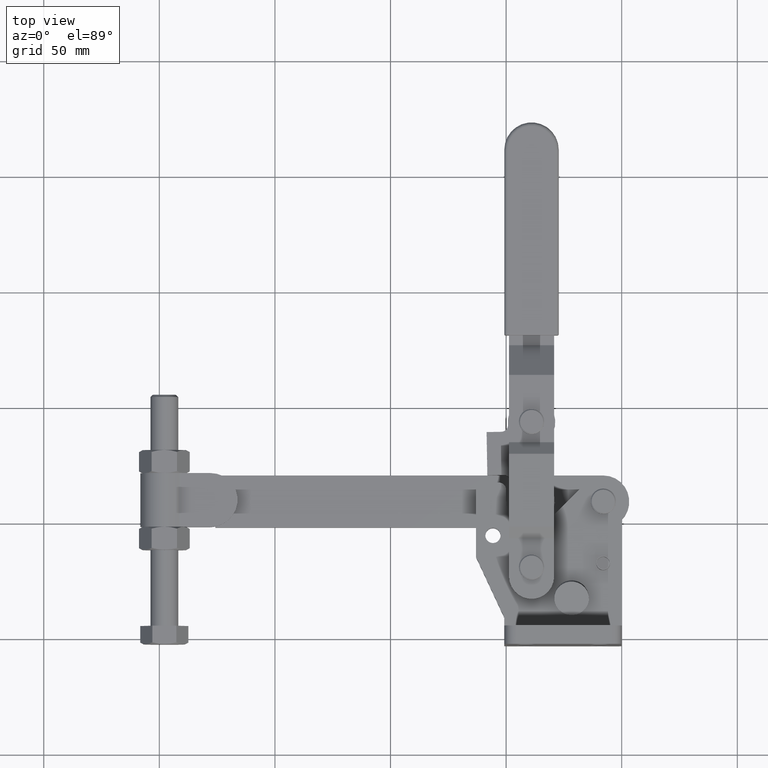
[diagram: clean part render]
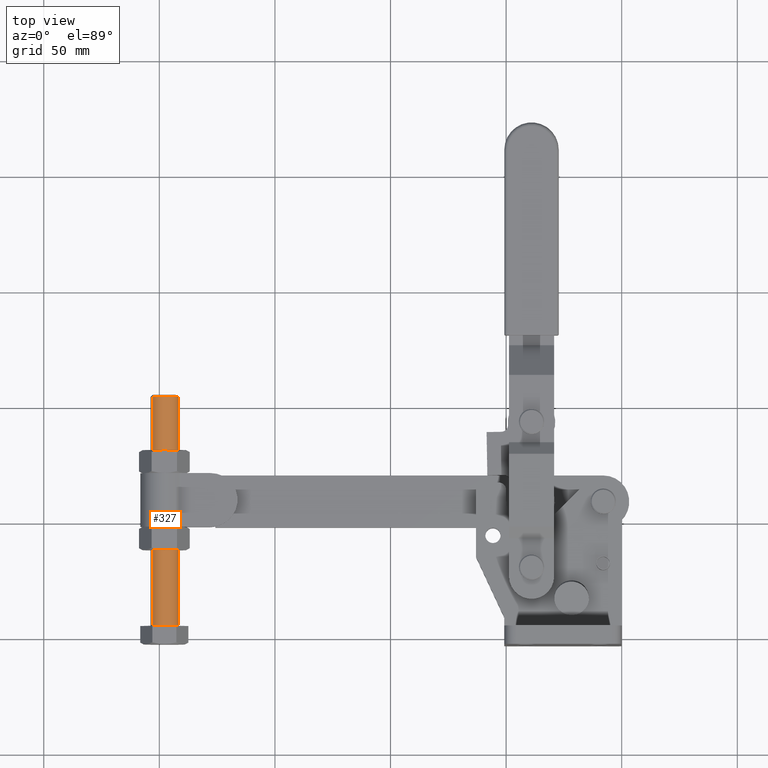
[diagram: same view with one face highlighted and labeled with its STEP entity id]
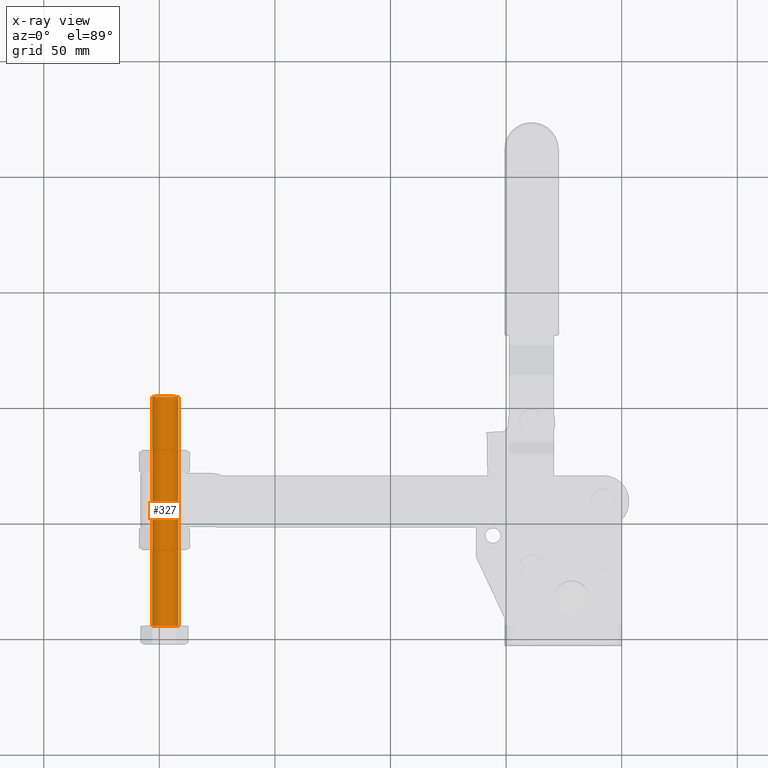
[diagram: x-ray of the same camera — body ghosted, the highlighted face saturated]
A machine part, top view. The second image highlights one B-rep face of the part: STEP entity #327.
The next image is the same camera in x-ray: the body ghosted, the highlighted face saturated — about 0% of this face is hidden behind the body in this view.
In plain terms, the highlighted cylindrical surface (edge-blend (fillet) strip) has radius 6 mm, axis along (0, -1, 0).
Its self-contained STEP definition (entity closure, byte-faithful):
#119 = CIRCLE ( 'NONE', #7127, 6.000000000000001800 ) ;
#265 = EDGE_LOOP ( 'NONE', ( #9430, #839, #3114, #5394 ) ) ;
#327 = ADVANCED_FACE ( 'NONE', ( #9414 ), #4553, .T. ) ;
#533 = LINE ( 'NONE', #1194, #9740 ) ;
#839 = ORIENTED_EDGE ( 'NONE', *, *, #5587, .T. ) ;
#1194 = CARTESIAN_POINT ( 'NONE',  ( -203.0315244574336200, -2.704595664833700800, -1.999999999998493900 ) ) ;
#1228 = DIRECTION ( 'NONE',  ( 3.885780586188057800E-016, -1.000000000000000000, 1.636625658568741100E-016 ) ) ;
#1504 = EDGE_CURVE ( 'NONE', #5515, #1570, #1625, .T. ) ;
#1570 = VERTEX_POINT ( 'NONE', #2757 ) ;
#1625 = LINE ( 'NONE', #10094, #4652 ) ;
#1666 = CARTESIAN_POINT ( 'NONE',  ( -197.8353720347269900, -2.704595664833699100, -4.999999999998502500 ) ) ;
#1837 = DIRECTION ( 'NONE',  ( 3.885780586188057800E-016, -1.000000000000000000, 1.636625658568741100E-016 ) ) ;
#1919 = DIRECTION ( 'NONE',  ( 3.885780586188057800E-016, -1.000000000000000000, 1.636625658568741100E-016 ) ) ;
#2547 = DIRECTION ( 'NONE',  ( -0.8660254037844379300, -2.891205793294677800E-016, 0.5000000000000012200 ) ) ;
#2655 = CARTESIAN_POINT ( 'NONE',  ( -197.8353720347269900, 5.245404335166299800, -4.999999999998504300 ) ) ;
#2687 = EDGE_CURVE ( 'NONE', #1570, #6316, #4373, .T. ) ;
#2757 = CARTESIAN_POINT ( 'NONE',  ( -192.6392196120203600, 5.245404335166301600, -7.999999999998516700 ) ) ;
#3114 = ORIENTED_EDGE ( 'NONE', *, *, #2687, .F. ) ;
#3387 = DIRECTION ( 'NONE',  ( 0.8660254037844379300, 0.0000000000000000000, -0.5000000000000012200 ) ) ;
#3413 = DIRECTION ( 'NONE',  ( 3.885780586188057800E-016, -1.000000000000000000, 1.636625658568741100E-016 ) ) ;
#3427 = CARTESIAN_POINT ( 'NONE',  ( -197.8353720347270200, 104.2814043351662900, -4.999999999998519400 ) ) ;
#4373 = CIRCLE ( 'NONE', #7646, 6.000000000000001800 ) ;
#4553 = CYLINDRICAL_SURFACE ( 'NONE', #10856, 6.000000000000001800 ) ;
#4652 = VECTOR ( 'NONE', #1919, 1000.000000000000000 ) ;
#5394 = ORIENTED_EDGE ( 'NONE', *, *, #1504, .F. ) ;
#5515 = VERTEX_POINT ( 'NONE', #5925 ) ;
#5587 = EDGE_CURVE ( 'NONE', #8853, #6316, #533, .T. ) ;
#5925 = CARTESIAN_POINT ( 'NONE',  ( -192.6392196120203800, 104.2814043351662900, -7.999999999998527400 ) ) ;
#6316 = VERTEX_POINT ( 'NONE', #6530 ) ;
#6530 = CARTESIAN_POINT ( 'NONE',  ( -203.0315244574336200, 5.245404335166298000, -1.999999999998501200 ) ) ;
#6907 = DIRECTION ( 'NONE',  ( 3.885780586188057800E-016, -1.000000000000000000, 1.636625658568741100E-016 ) ) ;
#7127 = AXIS2_PLACEMENT_3D ( 'NONE', #3427, #3413, #3387 ) ;
#7333 = DIRECTION ( 'NONE',  ( 0.8660254037844379300, 2.891205793294677800E-016, -0.5000000000000012200 ) ) ;
#7455 = CARTESIAN_POINT ( 'NONE',  ( -203.0315244574336500, 104.2814043351662900, -1.999999999998492500 ) ) ;
#7646 = AXIS2_PLACEMENT_3D ( 'NONE', #2655, #1837, #2547 ) ;
#8853 = VERTEX_POINT ( 'NONE', #7455 ) ;
#9414 = FACE_OUTER_BOUND ( 'NONE', #265, .T. ) ;
#9430 = ORIENTED_EDGE ( 'NONE', *, *, #10780, .T. ) ;
#9740 = VECTOR ( 'NONE', #1228, 1000.000000000000000 ) ;
#10094 = CARTESIAN_POINT ( 'NONE',  ( -192.6392196120203600, -2.704595664833697300, -7.999999999998509600 ) ) ;
#10780 = EDGE_CURVE ( 'NONE', #5515, #8853, #119, .T. ) ;
#10856 = AXIS2_PLACEMENT_3D ( 'NONE', #1666, #6907, #7333 ) ;